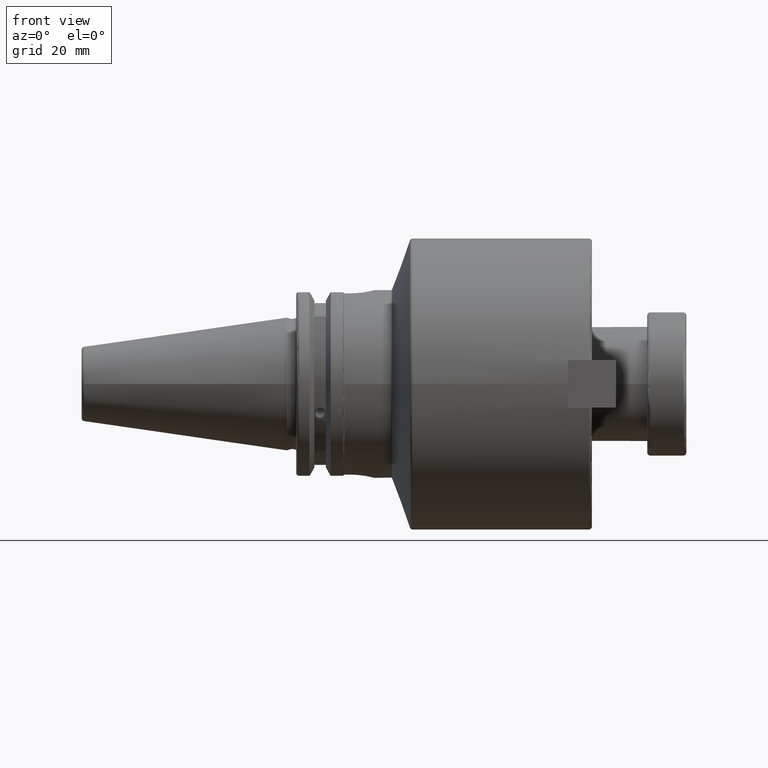
[diagram: clean part render]
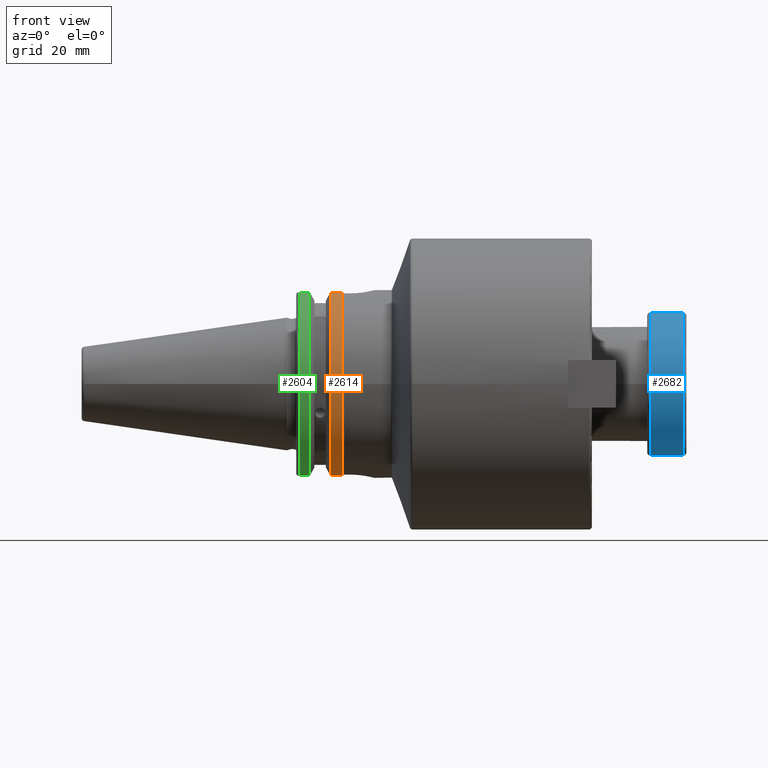
[diagram: same view with three faces highlighted in distinct colors, each labeled with its STEP entity id]
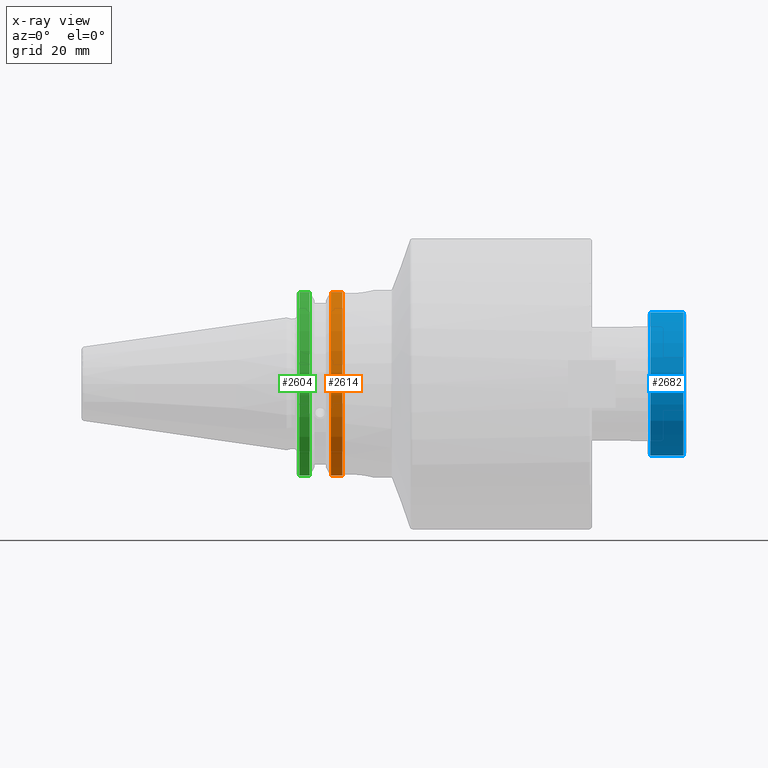
[diagram: x-ray of the same camera — body ghosted, the three highlighted faces saturated]
A machine part, front view with three faces highlighted in distinct colors.
The next image is the same camera in x-ray (body ghosted, the three faces saturated) — at least one of them is partly hidden behind the body in this view.
Their STEP definitions:

[orange] entity #2614 — the highlighted cylindrical surface (partial cylindrical patch) has radius 31.75 mm, axis along (1, 0, 0).
#143=CYLINDRICAL_SURFACE('',#2973,31.75);
#252=CIRCLE('',#2889,31.75);
#277=CIRCLE('',#2945,31.75);
#428=FACE_OUTER_BOUND('',#595,.T.);
#595=EDGE_LOOP('',(#2147,#2148,#2149,#2150));
#749=LINE('',#4677,#912);
#771=LINE('',#4850,#934);
#912=VECTOR('',#3508,10.);
#934=VECTOR('',#3582,10.);
#1136=VERTEX_POINT('',#4438);
#1137=VERTEX_POINT('',#4442);
#1188=VERTEX_POINT('',#4652);
#1189=VERTEX_POINT('',#4663);
#1429=EDGE_CURVE('',#1137,#1136,#252,.T.);
#1501=EDGE_CURVE('',#1188,#1189,#277,.T.);
#1504=EDGE_CURVE('',#1137,#1188,#749,.T.);
#1553=EDGE_CURVE('',#1189,#1136,#771,.T.);
#2147=ORIENTED_EDGE('',*,*,#1501,.F.);
#2148=ORIENTED_EDGE('',*,*,#1504,.F.);
#2149=ORIENTED_EDGE('',*,*,#1429,.T.);
#2150=ORIENTED_EDGE('',*,*,#1553,.F.);
#2614=ADVANCED_FACE('',(#428),#143,.T.);
#2889=AXIS2_PLACEMENT_3D('',#4443,#3365,#3366);
#2945=AXIS2_PLACEMENT_3D('',#4664,#3503,#3504);
#2973=AXIS2_PLACEMENT_3D('',#4851,#3583,#3584);
#3365=DIRECTION('center_axis',(1.,0.,0.));
#3366=DIRECTION('ref_axis',(0.,0.,-1.));
#3503=DIRECTION('center_axis',(1.,0.,0.));
#3504=DIRECTION('ref_axis',(0.,-1.,1.60812264967664E-16));
#3508=DIRECTION('',(1.,0.,0.));
#3582=DIRECTION('',(-1.,0.,0.));
#3583=DIRECTION('center_axis',(1.,0.,0.));
#3584=DIRECTION('ref_axis',(0.,-1.,1.22464679914735E-16));
#4438=CARTESIAN_POINT('',(14.6602667690756,-8.67204822802686,-30.5427254764662));
#4442=CARTESIAN_POINT('',(14.6602667690756,-8.67204822802685,30.5427254764662));
#4443=CARTESIAN_POINT('Origin',(14.6602667690756,0.,0.));
#4652=CARTESIAN_POINT('',(18.55,-8.67204822802685,30.5427254764662));
#4663=CARTESIAN_POINT('',(18.55,-8.67204822802686,-30.5427254764662));
#4664=CARTESIAN_POINT('Origin',(18.55,0.,0.));
#4677=CARTESIAN_POINT('',(16.8551333845378,-8.67204822802685,30.5427254764662));
#4850=CARTESIAN_POINT('',(16.8551333845378,-8.67204822802686,-30.5427254764662));
#4851=CARTESIAN_POINT('Origin',(16.8551333845378,0.,0.));

[blue] entity #2682 — the highlighted cylindrical surface (bore or boss wall) has radius 23.85 mm, axis along (-1, 0, -0).
#158=CYLINDRICAL_SURFACE('',#3099,23.85);
#341=CIRCLE('',#3097,23.85);
#342=CIRCLE('',#3098,23.85);
#343=CIRCLE('',#3100,23.85);
#344=CIRCLE('',#3101,23.85);
#496=FACE_OUTER_BOUND('',#671,.T.);
#671=EDGE_LOOP('',(#2447,#2448,#2449,#2450,#2451,#2452));
#837=LINE('',#5145,#1000);
#1000=VECTOR('',#3902,23.85);
#1293=VERTEX_POINT('',#5138);
#1294=VERTEX_POINT('',#5140);
#1295=VERTEX_POINT('',#5144);
#1296=VERTEX_POINT('',#5146);
#1680=EDGE_CURVE('',#1293,#1294,#341,.T.);
#1681=EDGE_CURVE('',#1294,#1293,#342,.T.);
#1682=EDGE_CURVE('',#1294,#1295,#837,.T.);
#1683=EDGE_CURVE('',#1296,#1295,#343,.T.);
#1684=EDGE_CURVE('',#1295,#1296,#344,.T.);
#2447=ORIENTED_EDGE('',*,*,#1681,.F.);
#2448=ORIENTED_EDGE('',*,*,#1682,.T.);
#2449=ORIENTED_EDGE('',*,*,#1683,.F.);
#2450=ORIENTED_EDGE('',*,*,#1684,.F.);
#2451=ORIENTED_EDGE('',*,*,#1682,.F.);
#2452=ORIENTED_EDGE('',*,*,#1680,.F.);
#2682=ADVANCED_FACE('',(#496),#158,.T.);
#3097=AXIS2_PLACEMENT_3D('',#5141,#3896,#3897);
#3098=AXIS2_PLACEMENT_3D('',#5142,#3898,#3899);
#3099=AXIS2_PLACEMENT_3D('',#5143,#3900,#3901);
#3100=AXIS2_PLACEMENT_3D('',#5147,#3903,#3904);
#3101=AXIS2_PLACEMENT_3D('',#5148,#3905,#3906);
#3896=DIRECTION('center_axis',(1.,0.,0.));
#3897=DIRECTION('ref_axis',(0.,-1.,1.83697019872103E-16));
#3898=DIRECTION('center_axis',(1.,0.,0.));
#3899=DIRECTION('ref_axis',(0.,-1.,1.83697019872103E-16));
#3900=DIRECTION('center_axis',(1.,0.,0.));
#3901=DIRECTION('ref_axis',(0.,1.,0.));
#3902=DIRECTION('',(-1.,0.,0.));
#3903=DIRECTION('center_axis',(-1.,0.,0.));
#3904=DIRECTION('ref_axis',(0.,-1.,1.83697019872103E-16));
#3905=DIRECTION('center_axis',(-1.,0.,0.));
#3906=DIRECTION('ref_axis',(0.,-1.,1.83697019872103E-16));
#5138=CARTESIAN_POINT('',(12.,-2.92078261596644E-15,23.85));
#5140=CARTESIAN_POINT('',(12.,-23.85,-2.92078261596644E-15));
#5141=CARTESIAN_POINT('Origin',(12.,0.,0.));
#5142=CARTESIAN_POINT('Origin',(12.,0.,0.));
#5143=CARTESIAN_POINT('Origin',(6.5,0.,0.));
#5144=CARTESIAN_POINT('',(1.,-23.85,-2.92078261596644E-15));
#5145=CARTESIAN_POINT('',(6.5,-23.85,-2.92078261596644E-15));
#5146=CARTESIAN_POINT('',(1.,-2.92078261596644E-15,23.85));
#5147=CARTESIAN_POINT('Origin',(1.,0.,0.));
#5148=CARTESIAN_POINT('Origin',(1.,0.,0.));

[green] entity #2604 — the highlighted cylindrical surface (partial cylindrical patch) has radius 31.75 mm, axis along (1, 0, 0).
#142=CYLINDRICAL_SURFACE('',#2955,31.75);
#279=CIRCLE('',#2953,31.75);
#280=CIRCLE('',#2956,31.75);
#418=FACE_OUTER_BOUND('',#584,.T.);
#584=EDGE_LOOP('',(#2095,#2096,#2097,#2098));
#764=LINE('',#4787,#927);
#765=LINE('',#4793,#928);
#927=VECTOR('',#3539,10.);
#928=VECTOR('',#3542,10.);
#1205=VERTEX_POINT('',#4760);
#1206=VERTEX_POINT('',#4769);
#1207=VERTEX_POINT('',#4786);
#1208=VERTEX_POINT('',#4792);
#1529=EDGE_CURVE('',#1205,#1206,#279,.T.);
#1532=EDGE_CURVE('',#1206,#1207,#764,.T.);
#1534=EDGE_CURVE('',#1208,#1205,#765,.T.);
#1535=EDGE_CURVE('',#1207,#1208,#280,.T.);
#2095=ORIENTED_EDGE('',*,*,#1529,.F.);
#2096=ORIENTED_EDGE('',*,*,#1534,.F.);
#2097=ORIENTED_EDGE('',*,*,#1535,.F.);
#2098=ORIENTED_EDGE('',*,*,#1532,.F.);
#2604=ADVANCED_FACE('',(#418),#142,.T.);
#2953=AXIS2_PLACEMENT_3D('',#4770,#3535,#3536);
#2955=AXIS2_PLACEMENT_3D('',#4791,#3540,#3541);
#2956=AXIS2_PLACEMENT_3D('',#4794,#3543,#3544);
#3535=DIRECTION('center_axis',(-1.,0.,0.));
#3536=DIRECTION('ref_axis',(0.,-1.,1.60812264967664E-16));
#3539=DIRECTION('',(1.,0.,0.));
#3540=DIRECTION('center_axis',(1.,0.,0.));
#3541=DIRECTION('ref_axis',(0.,-1.,1.22464679914735E-16));
#3542=DIRECTION('',(-1.,0.,0.));
#3543=DIRECTION('center_axis',(1.,0.,0.));
#3544=DIRECTION('ref_axis',(0.,0.,-1.));
#4760=CARTESIAN_POINT('',(4.175,-8.67204822802685,-30.5427254764662));
#4769=CARTESIAN_POINT('',(4.175,-8.67204822802685,30.5427254764662));
#4770=CARTESIAN_POINT('Origin',(4.175,0.,0.));
#4786=CARTESIAN_POINT('',(7.60793323092436,-8.67204822802685,30.5427254764662));
#4787=CARTESIAN_POINT('',(5.39146661546218,-8.67204822802685,30.5427254764662));
#4791=CARTESIAN_POINT('Origin',(5.39146661546218,0.,0.));
#4792=CARTESIAN_POINT('',(7.60793323092436,-8.67204822802685,-30.5427254764662));
#4793=CARTESIAN_POINT('',(5.39146661546218,-8.67204822802685,-30.5427254764662));
#4794=CARTESIAN_POINT('Origin',(7.60793323092436,0.,0.));